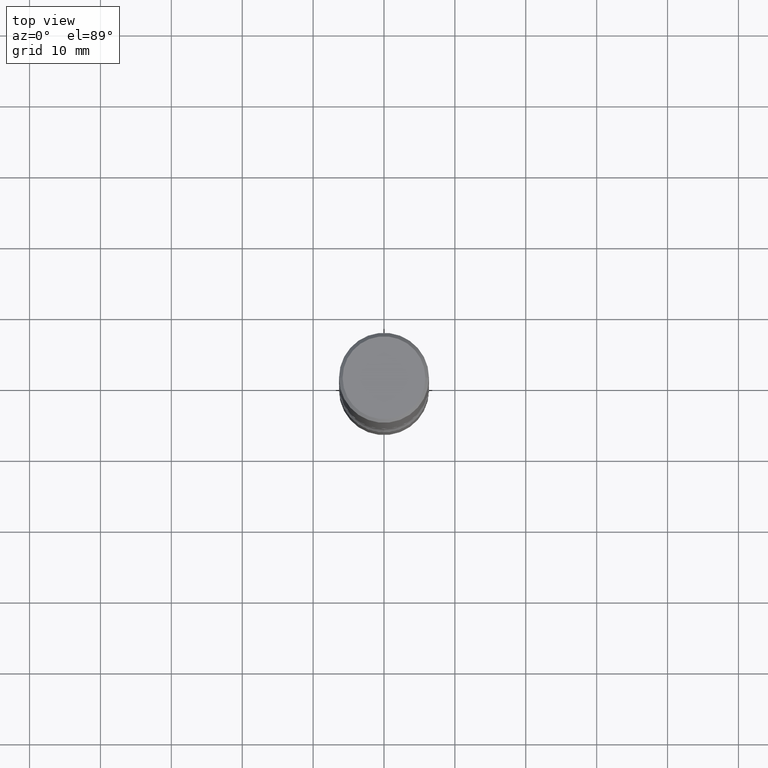
[diagram: clean part render]
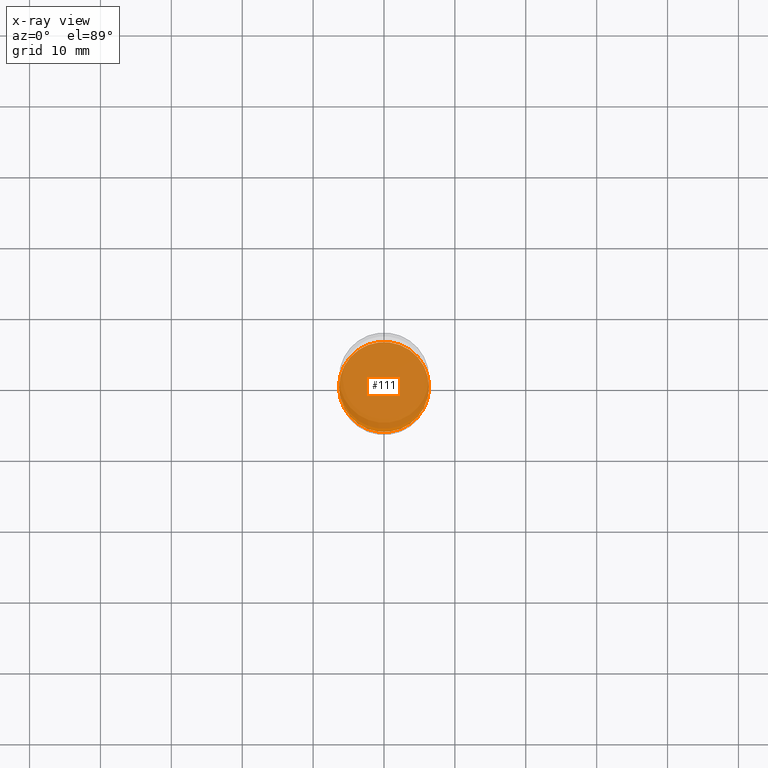
[diagram: x-ray — body ghosted, one internal face saturated and labeled with its STEP entity id]
A machine part, top view, then the same camera in x-ray: the body is ghosted and one INTERNAL B-rep face — a face not visible from any outside direction — is saturated and labeled: STEP entity #111.
In plain terms, the highlighted planar face has unit normal (0, -0, -1).
Its self-contained STEP definition (entity closure, byte-faithful):
#18 = DIRECTION ( 'NONE',  ( -1.000000000000000000, 6.982962677686265922E-15, -4.876176775795935793E-29 ) ) ;
#37 = AXIS2_PLACEMENT_3D ( 'NONE', #549, #388, #208 ) ;
#60 = EDGE_LOOP ( 'NONE', ( #202, #350 ) ) ;
#91 = CIRCLE ( 'NONE', #411, 0.2500000000000002776 ) ;
#105 = CARTESIAN_POINT ( 'NONE',  ( -0.2500000000000002776, -1.033908340638546235E-14, -3.000000000000000444 ) ) ;
#110 = EDGE_CURVE ( 'NONE', #222, #477, #91, .T. ) ;
#111 = ADVANCED_FACE ( 'NONE', ( #153 ), #331, .F. ) ;
#153 = FACE_OUTER_BOUND ( 'NONE', #60, .T. ) ;
#165 = CARTESIAN_POINT ( 'NONE',  ( 0.2500000000000002776, -1.222018468595100619E-14, -3.000000000000000444 ) ) ;
#196 = EDGE_CURVE ( 'NONE', #477, #222, #285, .T. ) ;
#202 = ORIENTED_EDGE ( 'NONE', *, *, #110, .T. ) ;
#208 = DIRECTION ( 'NONE',  ( 1.000000000000000000, -6.982962677686270655E-15, 0.000000000000000000 ) ) ;
#222 = VERTEX_POINT ( 'NONE', #165 ) ;
#285 = CIRCLE ( 'NONE', #37, 0.2500000000000002776 ) ;
#331 = PLANE ( 'NONE',  #374 ) ;
#350 = ORIENTED_EDGE ( 'NONE', *, *, #196, .T. ) ;
#374 = AXIS2_PLACEMENT_3D ( 'NONE', #462, #409, #18 ) ;
#377 = DIRECTION ( 'NONE',  ( -2.445468806185136597E-29, 3.491481338843145583E-15, 1.000000000000000000 ) ) ;
#388 = DIRECTION ( 'NONE',  ( -2.445468806185136597E-29, 3.491481338843145583E-15, 1.000000000000000000 ) ) ;
#409 = DIRECTION ( 'NONE',  ( 2.438088387897960049E-29, -3.491481338843145188E-15, -1.000000000000000000 ) ) ;
#411 = AXIS2_PLACEMENT_3D ( 'NONE', #416, #377, #544 ) ;
#416 = CARTESIAN_POINT ( 'NONE',  ( 7.336406418555409790E-29, -1.047444401652943635E-14, -3.000000000000000444 ) ) ;
#462 = CARTESIAN_POINT ( 'NONE',  ( 7.336406418555409790E-29, -1.047444401652943635E-14, -3.000000000000000444 ) ) ;
#477 = VERTEX_POINT ( 'NONE', #105 ) ;
#544 = DIRECTION ( 'NONE',  ( 1.000000000000000000, -6.982962677686270655E-15, 0.000000000000000000 ) ) ;
#549 = CARTESIAN_POINT ( 'NONE',  ( 7.336406418555409790E-29, -1.047444401652943635E-14, -3.000000000000000444 ) ) ;